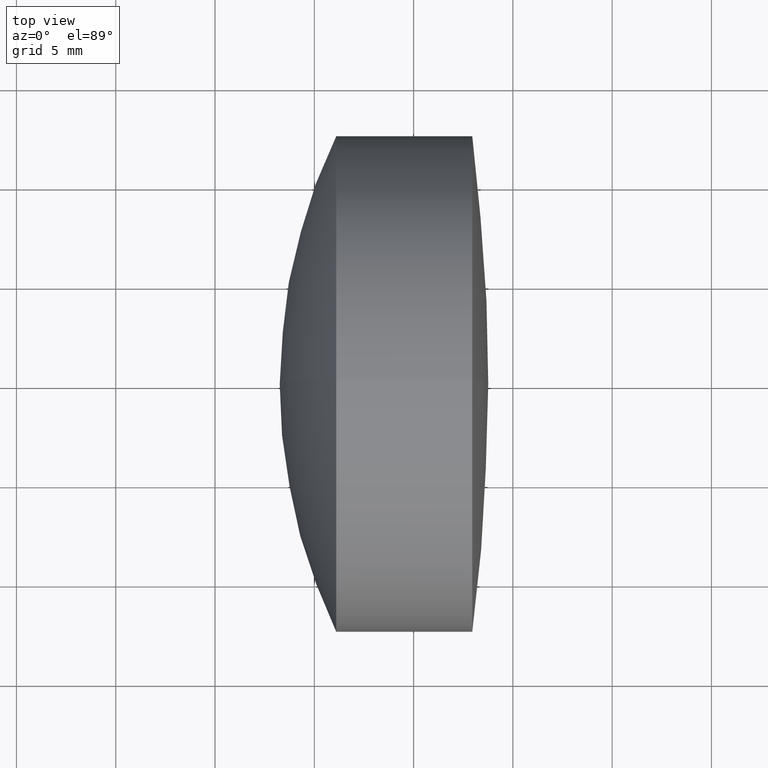
[diagram: clean part render]
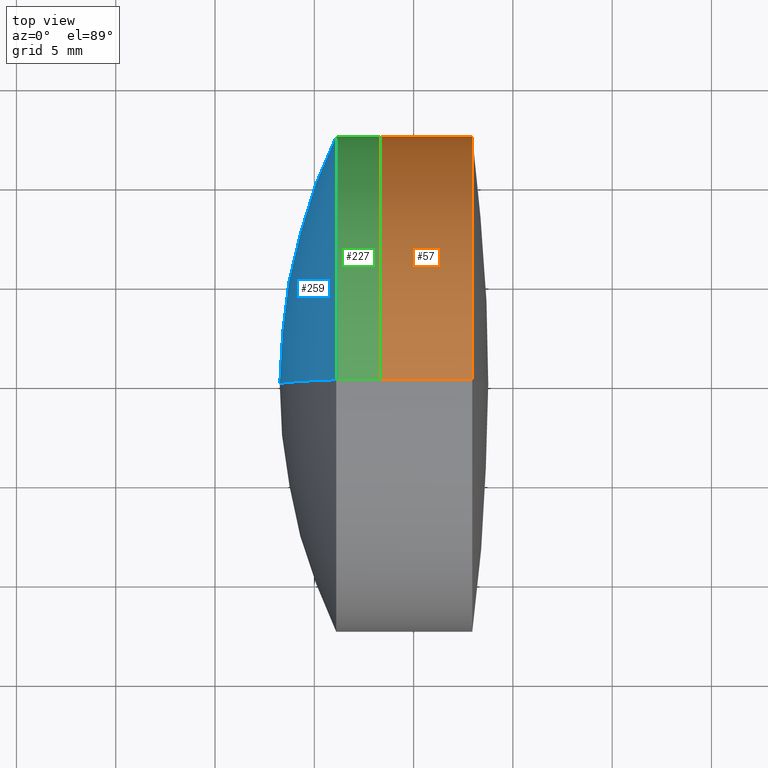
[diagram: same view with three faces highlighted in distinct colors, each labeled with its STEP entity id]
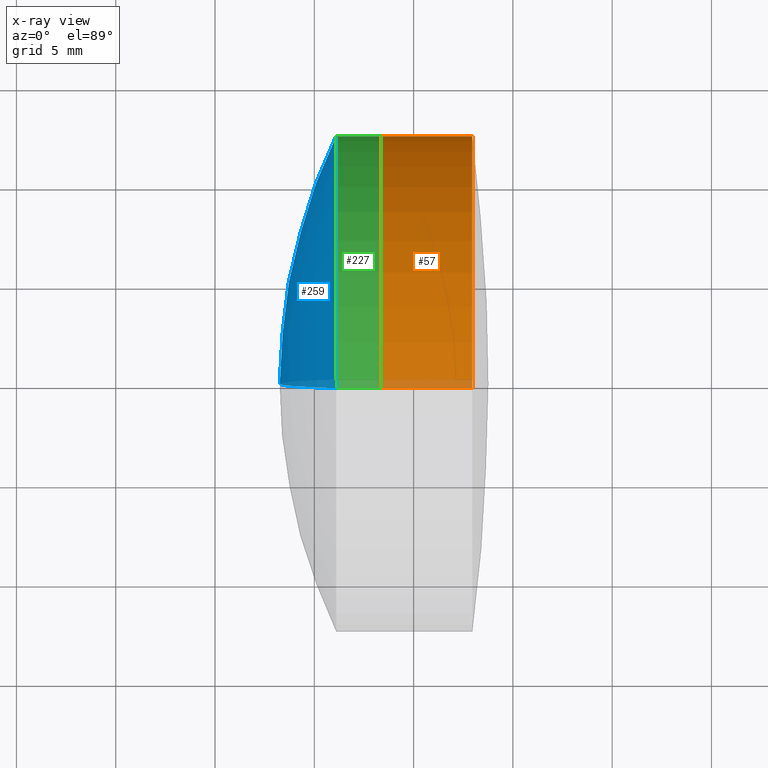
[diagram: x-ray of the same camera — body ghosted, the three highlighted faces saturated]
A machine part, top view with three faces highlighted in distinct colors.
The next image is the same camera in x-ray (body ghosted, the three faces saturated) — at least one of them is partly hidden behind the body in this view.
Their STEP definitions:

[orange] entity #57 — the highlighted cylindrical surface (partial cylindrical patch) has radius 12.5 mm, axis along (-1, -0, -0).
#9 = DIRECTION ( 'NONE',  ( -1.000000000000000000, -0.0000000000000000000, -0.0000000000000000000 ) ) ;
#26 = DIRECTION ( 'NONE',  ( 0.0000000000000000000, 0.0000000000000000000, 1.000000000000000000 ) ) ;
#32 = ORIENTED_EDGE ( 'NONE', *, *, #307, .F. ) ;
#34 = VERTEX_POINT ( 'NONE', #283 ) ;
#41 = CIRCLE ( 'NONE', #163, 12.49999999999999800 ) ;
#42 = CIRCLE ( 'NONE', #269, 12.50000000000000900 ) ;
#51 = CARTESIAN_POINT ( 'NONE',  ( -0.5519199926577972300, 1.530808498934191900E-015, -12.50000000000000400 ) ) ;
#54 = VERTEX_POINT ( 'NONE', #173 ) ;
#57 = ADVANCED_FACE ( 'NONE', ( #126 ), #159, .T. ) ;
#64 = ORIENTED_EDGE ( 'NONE', *, *, #132, .F. ) ;
#70 = EDGE_LOOP ( 'NONE', ( #293, #301, #64, #32 ) ) ;
#86 = VERTEX_POINT ( 'NONE', #319 ) ;
#90 = CARTESIAN_POINT ( 'NONE',  ( 33.32278150915288300, 0.0000000000000000000, 12.50000000000000900 ) ) ;
#124 = CARTESIAN_POINT ( 'NONE',  ( 37.95506700264331100, 0.0000000000000000000, 0.0000000000000000000 ) ) ;
#126 = FACE_OUTER_BOUND ( 'NONE', #70, .T. ) ;
#129 = LINE ( 'NONE', #332, #248 ) ;
#132 = EDGE_CURVE ( 'NONE', #277, #86, #42, .T. ) ;
#140 = DIRECTION ( 'NONE',  ( 0.0000000000000000000, 0.0000000000000000000, 1.000000000000000000 ) ) ;
#154 = EDGE_CURVE ( 'NONE', #34, #54, #41, .T. ) ;
#159 = CYLINDRICAL_SURFACE ( 'NONE', #316, 12.50000000000000400 ) ;
#163 = AXIS2_PLACEMENT_3D ( 'NONE', #124, #345, #140 ) ;
#167 = VECTOR ( 'NONE', #312, 1000.000000000000000 ) ;
#173 = CARTESIAN_POINT ( 'NONE',  ( 37.95506700264331100, 1.530808498934191700E-015, -12.49999999999999800 ) ) ;
#184 = DIRECTION ( 'NONE',  ( -1.000000000000000000, -0.0000000000000000000, -0.0000000000000000000 ) ) ;
#224 = DIRECTION ( 'NONE',  ( 0.0000000000000000000, 0.0000000000000000000, 1.000000000000000000 ) ) ;
#229 = LINE ( 'NONE', #51, #167 ) ;
#242 = CARTESIAN_POINT ( 'NONE',  ( 33.32278150915288300, 0.0000000000000000000, 0.0000000000000000000 ) ) ;
#248 = VECTOR ( 'NONE', #9, 1000.000000000000000 ) ;
#258 = DIRECTION ( 'NONE',  ( -1.000000000000000000, -0.0000000000000000000, -0.0000000000000000000 ) ) ;
#269 = AXIS2_PLACEMENT_3D ( 'NONE', #242, #258, #224 ) ;
#277 = VERTEX_POINT ( 'NONE', #90 ) ;
#283 = CARTESIAN_POINT ( 'NONE',  ( 37.95506700264331100, 0.0000000000000000000, 12.49999999999999800 ) ) ;
#293 = ORIENTED_EDGE ( 'NONE', *, *, #154, .T. ) ;
#300 = EDGE_CURVE ( 'NONE', #54, #86, #229, .T. ) ;
#301 = ORIENTED_EDGE ( 'NONE', *, *, #300, .T. ) ;
#307 = EDGE_CURVE ( 'NONE', #34, #277, #129, .T. ) ;
#312 = DIRECTION ( 'NONE',  ( -1.000000000000000000, -0.0000000000000000000, -0.0000000000000000000 ) ) ;
#316 = AXIS2_PLACEMENT_3D ( 'NONE', #334, #184, #26 ) ;
#319 = CARTESIAN_POINT ( 'NONE',  ( 33.32278150915288300, 1.530808498934192700E-015, -12.50000000000000900 ) ) ;
#332 = CARTESIAN_POINT ( 'NONE',  ( -0.5519199926577972300, 0.0000000000000000000, 12.50000000000000400 ) ) ;
#334 = CARTESIAN_POINT ( 'NONE',  ( -0.5519199926577972300, 0.0000000000000000000, 0.0000000000000000000 ) ) ;
#345 = DIRECTION ( 'NONE',  ( -1.000000000000000000, -0.0000000000000000000, -0.0000000000000000000 ) ) ;

[blue] entity #259 — the highlighted spherical surface has radius 28.87 mm.
#37 = EDGE_CURVE ( 'NONE', #297, #340, #121, .T. ) ;
#47 = CARTESIAN_POINT ( 'NONE',  ( 31.10608543863473900, 0.0000000000000000000, 0.0000000000000000000 ) ) ;
#56 = CIRCLE ( 'NONE', #280, 28.86999999999999700 ) ;
#63 = EDGE_CURVE ( 'NONE', #145, #297, #266, .T. ) ;
#83 = DIRECTION ( 'NONE',  ( 0.0000000000000000000, 0.0000000000000000000, -1.000000000000000000 ) ) ;
#85 = CARTESIAN_POINT ( 'NONE',  ( 28.25966897357473300, 0.0000000000000000000, -1.727120060984094100E-015 ) ) ;
#92 = AXIS2_PLACEMENT_3D ( 'NONE', #47, #210, #103 ) ;
#97 = CARTESIAN_POINT ( 'NONE',  ( 57.12966897357473100, 0.0000000000000000000, 4.065759358510992000E-017 ) ) ;
#103 = DIRECTION ( 'NONE',  ( 0.0000000000000000000, 0.0000000000000000000, 1.000000000000000000 ) ) ;
#114 = DIRECTION ( 'NONE',  ( 0.0000000000000000000, 1.224646799147353000E-016, -1.000000000000000000 ) ) ;
#117 = DIRECTION ( 'NONE',  ( 0.0000000000000000000, -1.000000000000000000, -1.224646799147353200E-016 ) ) ;
#121 = CIRCLE ( 'NONE', #158, 28.86999999999999700 ) ;
#127 = ORIENTED_EDGE ( 'NONE', *, *, #176, .F. ) ;
#141 = ORIENTED_EDGE ( 'NONE', *, *, #37, .T. ) ;
#145 = VERTEX_POINT ( 'NONE', #198 ) ;
#158 = AXIS2_PLACEMENT_3D ( 'NONE', #97, #290, #175 ) ;
#175 = DIRECTION ( 'NONE',  ( 0.0000000000000000000, 0.0000000000000000000, 1.000000000000000000 ) ) ;
#176 = EDGE_CURVE ( 'NONE', #145, #340, #56, .T. ) ;
#177 = EDGE_LOOP ( 'NONE', ( #127, #216, #141 ) ) ;
#198 = CARTESIAN_POINT ( 'NONE',  ( 31.10608543863473900, -1.530808498934191100E-015, 12.49999999999999800 ) ) ;
#210 = DIRECTION ( 'NONE',  ( -1.000000000000000000, -0.0000000000000000000, -0.0000000000000000000 ) ) ;
#216 = ORIENTED_EDGE ( 'NONE', *, *, #63, .T. ) ;
#228 = CARTESIAN_POINT ( 'NONE',  ( 57.12966897357473100, 0.0000000000000000000, 4.065759358510992000E-017 ) ) ;
#239 = FACE_OUTER_BOUND ( 'NONE', #177, .T. ) ;
#253 = SPHERICAL_SURFACE ( 'NONE', #311, 28.86999999999999700 ) ;
#255 = DIRECTION ( 'NONE',  ( -0.0000000000000000000, -1.000000000000000000, -0.0000000000000000000 ) ) ;
#259 = ADVANCED_FACE ( 'NONE', ( #239 ), #253, .T. ) ;
#261 = CARTESIAN_POINT ( 'NONE',  ( 57.12966897357473100, 0.0000000000000000000, 4.065759358510992000E-017 ) ) ;
#266 = CIRCLE ( 'NONE', #92, 12.50000000000000000 ) ;
#280 = AXIS2_PLACEMENT_3D ( 'NONE', #261, #117, #114 ) ;
#290 = DIRECTION ( 'NONE',  ( 0.0000000000000000000, 1.000000000000000000, -0.0000000000000000000 ) ) ;
#297 = VERTEX_POINT ( 'NONE', #322 ) ;
#311 = AXIS2_PLACEMENT_3D ( 'NONE', #228, #255, #83 ) ;
#322 = CARTESIAN_POINT ( 'NONE',  ( 31.10608543863473900, 0.0000000000000000000, -12.49999999999999800 ) ) ;
#340 = VERTEX_POINT ( 'NONE', #85 ) ;

[green] entity #227 — the highlighted cylindrical surface (partial cylindrical patch) has radius 12.5 mm, axis along (-1, -0, -0).
#6 = EDGE_CURVE ( 'NONE', #282, #297, #101, .T. ) ;
#14 = AXIS2_PLACEMENT_3D ( 'NONE', #321, #193, #220 ) ;
#17 = CARTESIAN_POINT ( 'NONE',  ( -9.702612178336682500, 0.0000000000000000000, 12.50000000000000000 ) ) ;
#21 = ORIENTED_EDGE ( 'NONE', *, *, #63, .F. ) ;
#39 = CIRCLE ( 'NONE', #14, 12.49999999999999800 ) ;
#44 = FACE_OUTER_BOUND ( 'NONE', #80, .T. ) ;
#47 = CARTESIAN_POINT ( 'NONE',  ( 31.10608543863473900, 0.0000000000000000000, 0.0000000000000000000 ) ) ;
#63 = EDGE_CURVE ( 'NONE', #145, #297, #266, .T. ) ;
#69 = DIRECTION ( 'NONE',  ( -1.000000000000000000, -0.0000000000000000000, -0.0000000000000000000 ) ) ;
#79 = CARTESIAN_POINT ( 'NONE',  ( 33.32278150915288300, 1.530808498934191300E-015, -12.49999999999999800 ) ) ;
#80 = EDGE_LOOP ( 'NONE', ( #135, #212, #21, #128 ) ) ;
#92 = AXIS2_PLACEMENT_3D ( 'NONE', #47, #210, #103 ) ;
#98 = EDGE_CURVE ( 'NONE', #146, #282, #39, .T. ) ;
#101 = LINE ( 'NONE', #106, #109 ) ;
#103 = DIRECTION ( 'NONE',  ( 0.0000000000000000000, 0.0000000000000000000, 1.000000000000000000 ) ) ;
#106 = CARTESIAN_POINT ( 'NONE',  ( -9.702612178336682500, 1.530808498934191500E-015, -12.50000000000000000 ) ) ;
#109 = VECTOR ( 'NONE', #281, 1000.000000000000000 ) ;
#128 = ORIENTED_EDGE ( 'NONE', *, *, #347, .F. ) ;
#135 = ORIENTED_EDGE ( 'NONE', *, *, #98, .T. ) ;
#137 = CARTESIAN_POINT ( 'NONE',  ( -9.702612178336682500, 0.0000000000000000000, 0.0000000000000000000 ) ) ;
#145 = VERTEX_POINT ( 'NONE', #198 ) ;
#146 = VERTEX_POINT ( 'NONE', #278 ) ;
#193 = DIRECTION ( 'NONE',  ( -1.000000000000000000, -0.0000000000000000000, -0.0000000000000000000 ) ) ;
#198 = CARTESIAN_POINT ( 'NONE',  ( 31.10608543863473900, -1.530808498934191100E-015, 12.49999999999999800 ) ) ;
#199 = DIRECTION ( 'NONE',  ( -1.000000000000000000, -0.0000000000000000000, -0.0000000000000000000 ) ) ;
#202 = VECTOR ( 'NONE', #69, 1000.000000000000000 ) ;
#210 = DIRECTION ( 'NONE',  ( -1.000000000000000000, -0.0000000000000000000, -0.0000000000000000000 ) ) ;
#212 = ORIENTED_EDGE ( 'NONE', *, *, #6, .T. ) ;
#220 = DIRECTION ( 'NONE',  ( 0.0000000000000000000, 0.0000000000000000000, 1.000000000000000000 ) ) ;
#221 = AXIS2_PLACEMENT_3D ( 'NONE', #137, #199, #303 ) ;
#227 = ADVANCED_FACE ( 'NONE', ( #44 ), #257, .T. ) ;
#257 = CYLINDRICAL_SURFACE ( 'NONE', #221, 12.50000000000000000 ) ;
#266 = CIRCLE ( 'NONE', #92, 12.50000000000000000 ) ;
#268 = LINE ( 'NONE', #17, #202 ) ;
#278 = CARTESIAN_POINT ( 'NONE',  ( 33.32278150915288300, 0.0000000000000000000, 12.49999999999999800 ) ) ;
#281 = DIRECTION ( 'NONE',  ( -1.000000000000000000, -0.0000000000000000000, -0.0000000000000000000 ) ) ;
#282 = VERTEX_POINT ( 'NONE', #79 ) ;
#297 = VERTEX_POINT ( 'NONE', #322 ) ;
#303 = DIRECTION ( 'NONE',  ( 0.0000000000000000000, 0.0000000000000000000, 1.000000000000000000 ) ) ;
#321 = CARTESIAN_POINT ( 'NONE',  ( 33.32278150915288300, 0.0000000000000000000, 0.0000000000000000000 ) ) ;
#322 = CARTESIAN_POINT ( 'NONE',  ( 31.10608543863473900, 0.0000000000000000000, -12.49999999999999800 ) ) ;
#347 = EDGE_CURVE ( 'NONE', #146, #145, #268, .T. ) ;